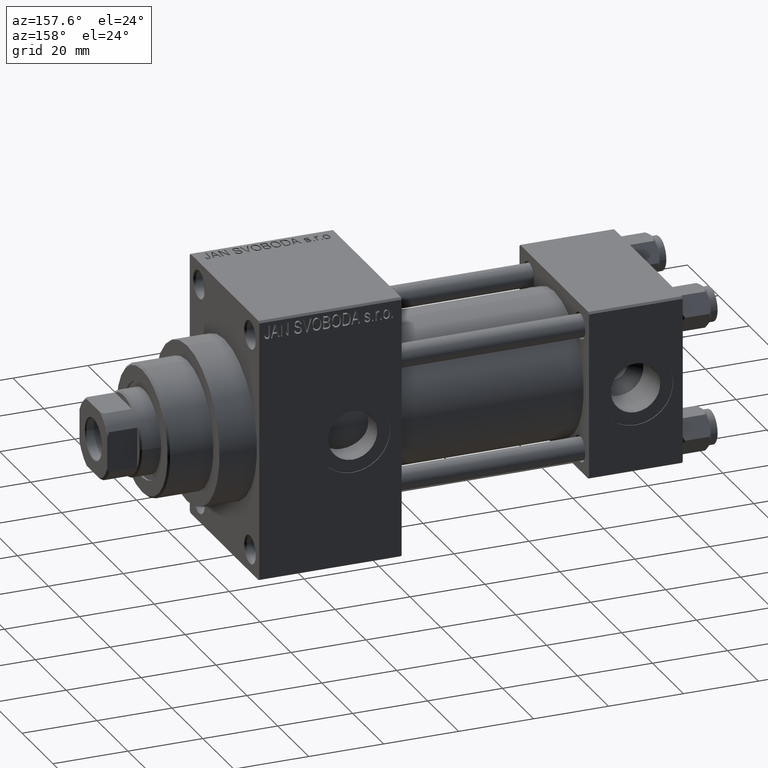
[diagram: clean part render]
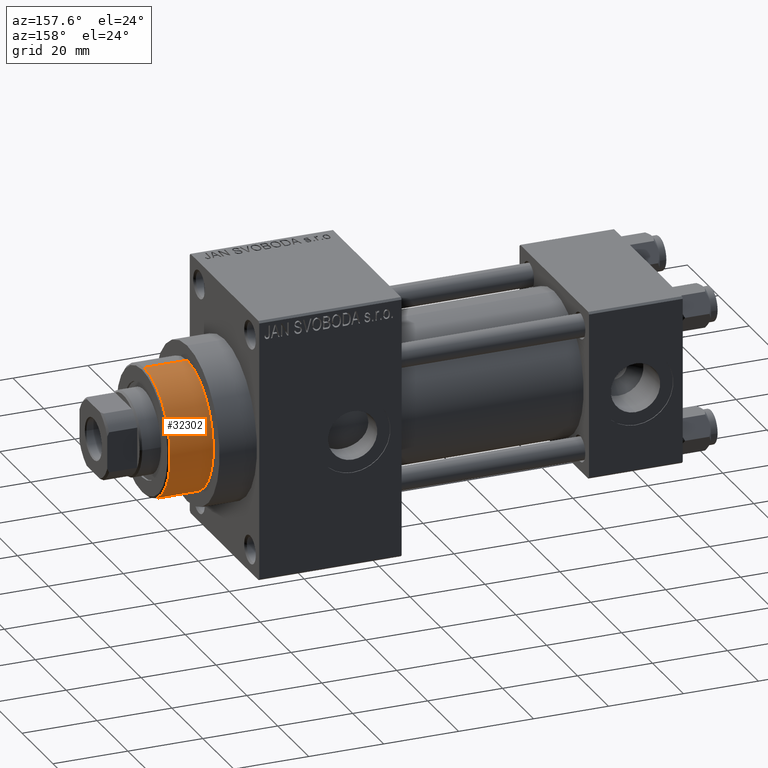
[diagram: same view with one face highlighted and labeled with its STEP entity id]
A machine part, auxiliary view. The second image highlights one B-rep face of the part: STEP entity #32302.
In plain terms, the highlighted cylindrical surface (partial cylindrical patch) has radius 17 mm, axis along (-1, 0, 0).
Its self-contained STEP definition (entity closure, byte-faithful):
#539 = ORIENTED_EDGE ( 'NONE', *, *, #15936, .T. ) ;
#946 = AXIS2_PLACEMENT_3D ( 'NONE', #4930, #27887, #20013 ) ;
#1417 = CARTESIAN_POINT ( 'NONE',  ( 0.000000000000000000, 0.000000000000000000, 55.26000000000000512 ) ) ;
#1914 = DIRECTION ( 'NONE',  ( 0.000000000000000000, 0.000000000000000000, 1.000000000000000000 ) ) ;
#2172 = VERTEX_POINT ( 'NONE', #2244 ) ;
#2244 = CARTESIAN_POINT ( 'NONE',  ( -17.00000000000000000, 0.000000000000000000, 54.76000000000001222 ) ) ;
#2951 = LINE ( 'NONE', #10603, #44858 ) ;
#4228 = AXIS2_PLACEMENT_3D ( 'NONE', #1417, #8832, #16723 ) ;
#4930 = CARTESIAN_POINT ( 'NONE',  ( 0.000000000000000000, 0.000000000000000000, 54.76000000000001222 ) ) ;
#5572 = CARTESIAN_POINT ( 'NONE',  ( 17.00000000000000000, 2.081899558550500280E-15, 43.25999999999999801 ) ) ;
#8341 = CYLINDRICAL_SURFACE ( 'NONE', #4228, 17.00000000000000000 ) ;
#8832 = DIRECTION ( 'NONE',  ( -0.000000000000000000, -0.000000000000000000, -1.000000000000000000 ) ) ;
#10603 = CARTESIAN_POINT ( 'NONE',  ( 17.00000000000000000, 2.081899558550500280E-15, 55.26000000000000512 ) ) ;
#11945 = CARTESIAN_POINT ( 'NONE',  ( -17.00000000000000000, 0.000000000000000000, 43.25999999999999801 ) ) ;
#11973 = EDGE_CURVE ( 'NONE', #2172, #30569, #16948, .T. ) ;
#12046 = FACE_OUTER_BOUND ( 'NONE', #42510, .T. ) ;
#15936 = EDGE_CURVE ( 'NONE', #30569, #43306, #43904, .T. ) ;
#16723 = DIRECTION ( 'NONE',  ( -1.000000000000000000, 0.000000000000000000, 0.000000000000000000 ) ) ;
#16948 = LINE ( 'NONE', #31989, #39168 ) ;
#17225 = DIRECTION ( 'NONE',  ( 1.000000000000000000, 0.000000000000000000, 0.000000000000000000 ) ) ;
#19841 = ORIENTED_EDGE ( 'NONE', *, *, #20514, .F. ) ;
#20013 = DIRECTION ( 'NONE',  ( 1.000000000000000000, 0.000000000000000000, 0.000000000000000000 ) ) ;
#20277 = ORIENTED_EDGE ( 'NONE', *, *, #11973, .T. ) ;
#20514 = EDGE_CURVE ( 'NONE', #26587, #43306, #2951, .T. ) ;
#21013 = ORIENTED_EDGE ( 'NONE', *, *, #28730, .T. ) ;
#22677 = AXIS2_PLACEMENT_3D ( 'NONE', #47525, #1914, #17225 ) ;
#22705 = CARTESIAN_POINT ( 'NONE',  ( 17.00000000000000000, 2.081899558550500280E-15, 54.76000000000001222 ) ) ;
#26587 = VERTEX_POINT ( 'NONE', #22705 ) ;
#27887 = DIRECTION ( 'NONE',  ( 0.000000000000000000, 0.000000000000000000, -1.000000000000000000 ) ) ;
#28730 = EDGE_CURVE ( 'NONE', #26587, #2172, #45881, .T. ) ;
#29603 = DIRECTION ( 'NONE',  ( -0.000000000000000000, -0.000000000000000000, -1.000000000000000000 ) ) ;
#30569 = VERTEX_POINT ( 'NONE', #11945 ) ;
#31989 = CARTESIAN_POINT ( 'NONE',  ( -17.00000000000000000, 0.000000000000000000, 55.26000000000000512 ) ) ;
#32302 = ADVANCED_FACE ( 'NONE', ( #12046 ), #8341, .T. ) ;
#38900 = DIRECTION ( 'NONE',  ( -0.000000000000000000, -0.000000000000000000, -1.000000000000000000 ) ) ;
#39168 = VECTOR ( 'NONE', #38900, 1000.000000000000000 ) ;
#42510 = EDGE_LOOP ( 'NONE', ( #19841, #21013, #20277, #539 ) ) ;
#43306 = VERTEX_POINT ( 'NONE', #5572 ) ;
#43904 = CIRCLE ( 'NONE', #22677, 17.00000000000000000 ) ;
#44858 = VECTOR ( 'NONE', #29603, 1000.000000000000000 ) ;
#45881 = CIRCLE ( 'NONE', #946, 17.00000000000000000 ) ;
#47525 = CARTESIAN_POINT ( 'NONE',  ( 0.000000000000000000, 0.000000000000000000, 43.25999999999999801 ) ) ;